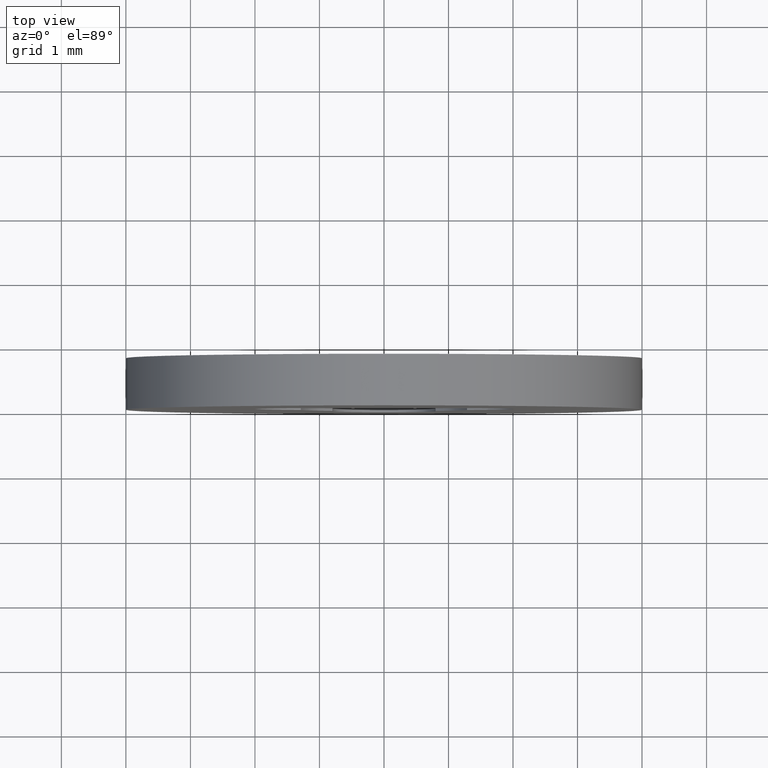
[diagram: clean part render]
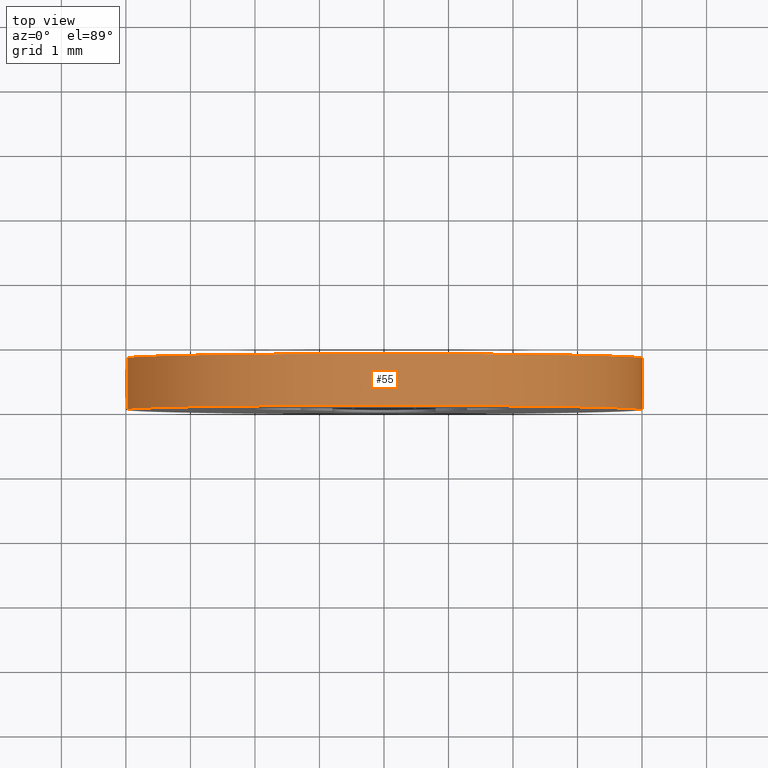
[diagram: same view with one face highlighted and labeled with its STEP entity id]
A machine part, top view. The second image highlights one B-rep face of the part: STEP entity #55.
In plain terms, the highlighted cylindrical surface (partial cylindrical patch) has radius 4 mm, axis along (0, 1, 0).
Its self-contained STEP definition (entity closure, byte-faithful):
#55=ADVANCED_FACE('',(#209),#208,.T.);
#208=CYLINDRICAL_SURFACE('',#298,4.00000000000E+00);
#209=FACE_OUTER_BOUND('',#299,.T.);
#295=CARTESIAN_POINT('',(-2.26487813248E-16,8.20000000000E-01,1.36315784584E-16));
#296=DIRECTION('',(3.07055953275E-17,1.00000000000E+00,2.58322924375E-16));
#297=DIRECTION('',(9.93009526364E-01,-6.16297582204E-32,-1.18034234657E-01));
#298=AXIS2_PLACEMENT_3D('',#295,#296,#297);
#299=EDGE_LOOP('',(#382,#383,#384,#385,#386,#387));
#382=ORIENTED_EDGE('',*,*,#403,.F.);
#383=ORIENTED_EDGE('',*,*,#405,.F.);
#384=ORIENTED_EDGE('',*,*,#430,.T.);
#385=ORIENTED_EDGE('',*,*,#388,.T.);
#386=ORIENTED_EDGE('',*,*,#390,.T.);
#387=ORIENTED_EDGE('',*,*,#431,.F.);
#388=EDGE_CURVE('',#432,#433,#434,.T.);
#390=EDGE_CURVE('',#433,#440,#447,.T.);
#403=EDGE_CURVE('',#537,#538,#539,.T.);
#405=EDGE_CURVE('',#545,#537,#552,.T.);
#430=EDGE_CURVE('',#545,#432,#714,.T.);
#431=EDGE_CURVE('',#538,#440,#720,.T.);
#432=VERTEX_POINT('',#726);
#433=VERTEX_POINT('',#727);
#434=CIRCLE('',#731,4.00000000000E+00);
#440=VERTEX_POINT('',#732);
#447=CIRCLE('',#740,4.00000000000E+00);
#537=VERTEX_POINT('',#795);
#538=VERTEX_POINT('',#796);
#539=CIRCLE('',#800,4.00000000000E+00);
#545=VERTEX_POINT('',#801);
#552=CIRCLE('',#809,4.00000000000E+00);
#714=(BOUNDED_CURVE() B_SPLINE_CURVE(1,(#900,#901),.UNSPECIFIED.,.F.,.F.) B_SPLINE_CURVE_WITH_KNOTS((2,2),(8.33333730703E-02,9.16666640476E-01),.UNSPECIFIED.) CURVE() GEOMETRIC_REPRESENTATION_ITEM() RATIONAL_B_SPLINE_CURVE((1.00000000000E+00,1.00000000000E+00)) REPRESENTATION_ITEM('') );
#720=(BOUNDED_CURVE() B_SPLINE_CURVE(1,(#902,#903),.UNSPECIFIED.,.F.,.F.) B_SPLINE_CURVE_WITH_KNOTS((2,2),(8.33333333340E-02,9.16666666667E-01),.UNSPECIFIED.) CURVE() GEOMETRIC_REPRESENTATION_ITEM() RATIONAL_B_SPLINE_CURVE((7.50000000000E-01,7.50000000000E-01)) REPRESENTATION_ITEM('') );
#726=CARTESIAN_POINT('',(3.97203811599E+00,8.00000000000E-01,-4.72136849999E-01));
#727=CARTESIAN_POINT('',(-1.83741910575E-14,8.00000000000E-01,4.00000000000E+00));
#728=CARTESIAN_POINT('',(-5.40234523783E-13,8.00000000000E-01,-1.18860477016E-12));
#729=DIRECTION('',(9.79792073693E-17,-1.00000000000E+00,3.53993598145E-16));
#730=DIRECTION('',(1.30104260698E-13,3.53993598145E-16,1.00000000000E+00));
#731=AXIS2_PLACEMENT_3D('',#728,#729,#730);
#732=CARTESIAN_POINT('',(-3.97195644415E+00,8.00000000000E-01,4.72823440361E-01));
#737=CARTESIAN_POINT('',(-5.40234523783E-13,8.00000000000E-01,-1.18860477016E-12));
#738=DIRECTION('',(9.79792073693E-17,-1.00000000000E+00,3.53993598145E-16));
#739=DIRECTION('',(1.30104260698E-13,3.53993598145E-16,1.00000000000E+00));
#740=AXIS2_PLACEMENT_3D('',#737,#738,#739);
#795=CARTESIAN_POINT('',(1.36002320517E-14,3.53272116375E-13,4.00000000000E+00));
#796=CARTESIAN_POINT('',(-3.97195644415E+00,1.94590009636E-14,4.72823440361E-01));
#797=CARTESIAN_POINT('',(-5.54223333893E-13,2.90991428058E-14,-1.21858079183E-12));
#798=DIRECTION('',(1.20744745506E-14,-1.00000000000E+00,8.10432433924E-14));
#799=DIRECTION('',(1.41581191215E-13,8.10432433924E-14,1.00000000000E+00));
#800=AXIS2_PLACEMENT_3D('',#797,#798,#799);
#801=CARTESIAN_POINT('',(3.97203811599E+00,3.87959143024E-14,-4.72136849999E-01));
#806=CARTESIAN_POINT('',(-5.54223333893E-13,2.90991428058E-14,-1.21858079183E-12));
#807=DIRECTION('',(1.20744745506E-14,-1.00000000000E+00,8.10432433924E-14));
#808=DIRECTION('',(1.41581191215E-13,8.10432433924E-14,1.00000000000E+00));
#809=AXIS2_PLACEMENT_3D('',#806,#807,#808);
#900=CARTESIAN_POINT('',(3.97203810545E+00,3.81468312355E-08,-4.72136938627E-01));
#901=CARTESIAN_POINT('',(3.97203810545E+00,7.99999974857E-01,-4.72136938627E-01));
#902=CARTESIAN_POINT('',(-3.97203810545E+00,2.60902410787E-14,4.72136938627E-01));
#903=CARTESIAN_POINT('',(-3.97203810545E+00,8.00000000000E-01,4.72136938627E-01));